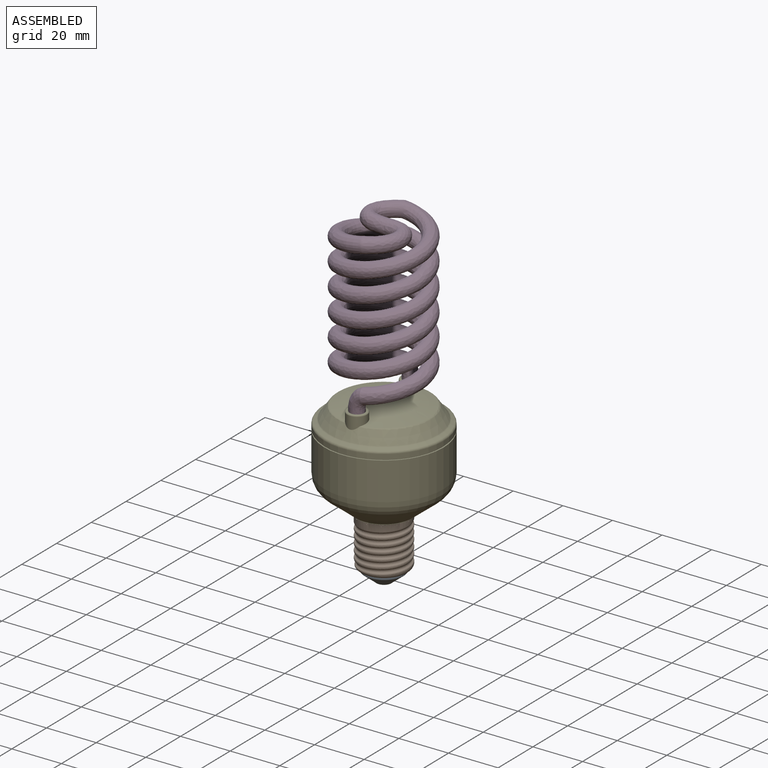
[diagram: assembled view]
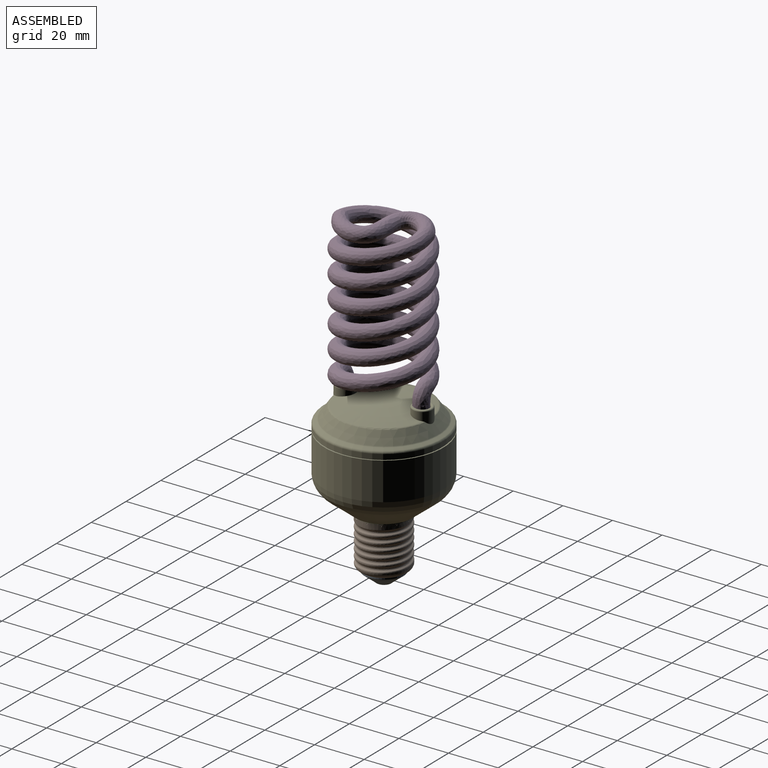
[diagram: assembled view, second angle]
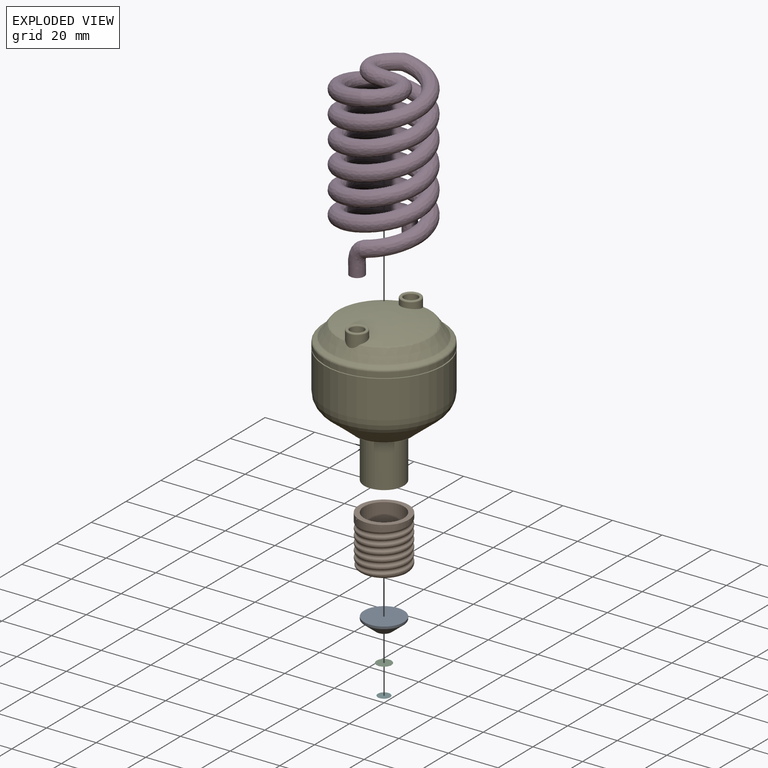
[diagram: exploded view]
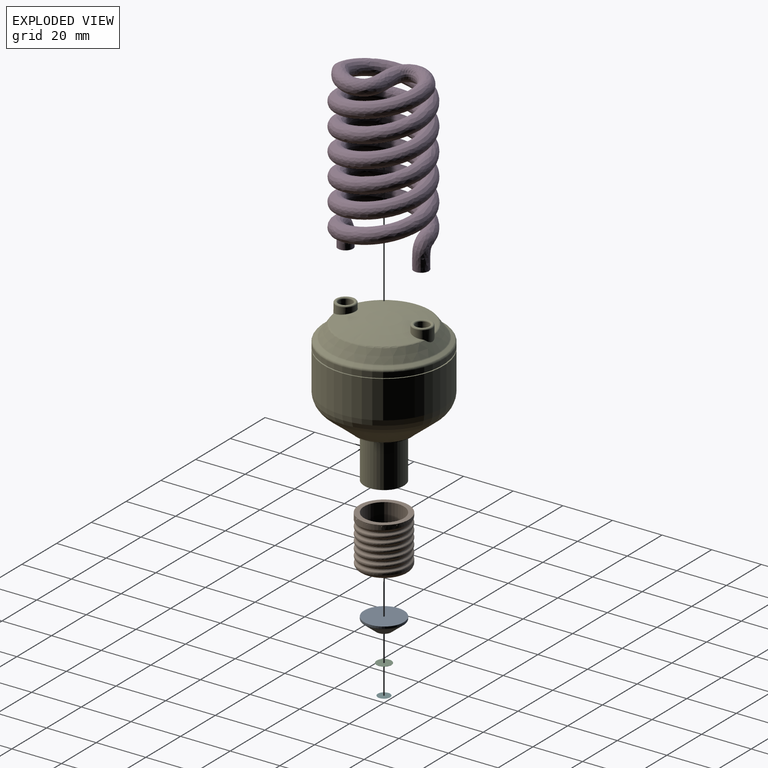
[diagram: exploded view, second angle]
ASSEMBLY  parts=6 mates=5
PART A: 5 faces, bbox 17.3x17.3x5 mm
  f0: plane 16x16mm, normal (0,0,1), area 201.1mm2, adj f1
  f1: cylinder r=8mm len=16mm, axis (0,0,1), area 38.2mm2, adj f0,f4
  f2: cone r=8mm half-angle=51.3deg, axis (0,0,1), area 209.3mm2, adj f3,f4
  f3: plane 6x6mm, normal (0,0,-1), area 28.3mm2, adj f2
  f4: torus R=7.5mm, axis (0,0,-1), area 22.3mm2, adj f1,f2
PART B: 67 faces, bbox 21.6x24.8x20 mm
  f0: torus R=0.06mm, axis (0.5,0.87,0), area 0mm2, adj f2,f3
  f1: bspline ~0.48x0.42mm, area 0.1mm2, adj f2,f44
  f2: cone r=0.1mm half-angle=45deg, axis (-0.5,-0.87,0), area 0.1mm2, adj f0,f1
  f3: plane 0.12x0.1mm, normal (-0.5,-0.87,0), area 0mm2, adj f0
  f4: torus R=0.06mm, axis (0.87,0.5,0), area 0mm2, adj f6,f7
  f5: bspline ~0.48x0.42mm, area 0.1mm2, adj f6,f44
  f6: cone r=0.1mm half-angle=45deg, axis (-0.87,-0.5,0), area 0.1mm2, adj f4,f5
  f7: plane 0.12x0.1mm, normal (-0.87,-0.5,0), area 0mm2, adj f4
  f8: torus R=0.06mm, axis (1,0,0), area 0mm2, adj f10,f11
  f9: bspline ~0.48x0.48mm, area 0.1mm2, adj f10,f44,f58
  f10: cone r=0.1mm half-angle=45deg, axis (-1,0,0), area 0.1mm2, adj f8,f9
  f11: plane 0.12x0.12mm, normal (-1,0,0), area 0mm2, adj f8
  f12: torus R=0.06mm, axis (0.87,-0.5,0), area 0mm2, adj f14,f15
  f13: bspline ~0.48x0.42mm, area 0.1mm2, adj f14,f44
  f14: cone r=0.1mm half-angle=45deg, axis (-0.87,0.5,0), area 0.1mm2, adj f12,f13
  f15: plane 0.12x0.1mm, normal (-0.87,0.5,0), area 0mm2, adj f12
  f16: torus R=0.06mm, axis (0.5,-0.87,0), area 0mm2, adj f18,f19
  f17: bspline ~0.48x0.42mm, area 0.1mm2, adj f18,f44
  f18: cone r=0.1mm half-angle=45deg, axis (-0.5,0.87,0), area 0.1mm2, adj f16,f17
  f19: plane 0.12x0.1mm, normal (-0.5,0.87,0), area 0mm2, adj f16
  f20: torus R=0.06mm, axis (0,-1,0), area 0mm2, adj f22,f23
  f21: bspline ~0.48x0.48mm, area 0.1mm2, adj f22,f44
  f22: cone r=0.1mm half-angle=45deg, axis (0,1,0), area 0.1mm2, adj f20,f21
  f23: plane 0.12x0.12mm, normal (0,1,0), area 0mm2, adj f20
  f24: torus R=0.06mm, axis (-0.5,-0.87,0), area 0mm2, adj f26,f27
  f25: bspline ~0.48x0.42mm, area 0.1mm2, adj f26,f44
  f26: cone r=0.1mm half-angle=45deg, axis (0.5,0.87,0), area 0.1mm2, adj f24,f25
  f27: plane 0.12x0.1mm, normal (0.5,0.87,0), area 0mm2, adj f24
  f28: torus R=0.06mm, axis (-0.87,-0.5,0), area 0mm2, adj f30,f31
  f29: bspline ~0.48x0.42mm, area 0.1mm2, adj f30,f44
  f30: cone r=0.1mm half-angle=45deg, axis (0.87,0.5,0), area 0.1mm2, adj f28,f29
  f31: plane 0.12x0.1mm, normal (0.87,0.5,0), area 0mm2, adj f28
  f32: torus R=0.06mm, axis (-1,0,0), area 0mm2, adj f34,f35
  f33: bspline ~0.48x0.48mm, area 0.1mm2, adj f34,f44
  f34: cone r=0.1mm half-angle=45deg, axis (1,0,0), area 0.1mm2, adj f32,f33
  f35: plane 0.12x0.12mm, normal (1,0,0), area 0mm2, adj f32
  f36: torus R=0.06mm, axis (-0.87,0.5,0), area 0mm2, adj f38,f39
  f37: bspline ~0.48x0.42mm, area 0.1mm2, adj f38,f44
  f38: cone r=0.1mm half-angle=45deg, axis (0.87,-0.5,0), area 0.1mm2, adj f36,f37
  f39: plane 0.12x0.1mm, normal (0.87,-0.5,0), area 0mm2, adj f36
  f40: torus R=0.06mm, axis (-0.5,0.87,0), area 0mm2, adj f42,f43
  f41: bspline ~0.48x0.42mm, area 0.1mm2, adj f42,f44
  f42: cone r=0.1mm half-angle=45deg, axis (0.5,-0.87,0), area 0.1mm2, adj f40,f41
  f43: plane 0.12x0.1mm, normal (0.5,-0.87,0), area 0mm2, adj f40
  f44: cylinder r=10mm len=20mm, axis (0,0,-1), area 122.1mm2, adj f1,f5,f9,f13,f17,f21,f25,f29
  f45: cylinder r=10mm len=20mm, axis (0,0,-1), area 21.4mm2, adj f46,f53,f54,f55,f59
  f46: cylinder r=10mm len=20mm, axis (0,0,-1), area 15.5mm2, adj f45,f47,f53,f54
  f47: cylinder r=10mm len=20mm, axis (0,0,-1), area 15.5mm2, adj f46,f48,f53,f54
  f48: cylinder r=10mm len=20mm, axis (0,0,-1), area 15.5mm2, adj f47,f49,f53,f54
  f49: cylinder r=10mm len=20mm, axis (0,0,-1), area 15.5mm2, adj f48,f50,f53,f54
  f50: cylinder r=10mm len=20mm, axis (0,0,-1), area 15.5mm2, adj f44,f49,f53,f54,f58
  f51: plane 20x20mm, normal (0,0,1), area 113.1mm2, adj f44,f66
  f52: bspline ~24.83x21.57mm, area 587.8mm2, adj f53,f54,f56,f57,f58,f61
  f53: bspline ~20.01x20.01mm, area 247.6mm2, adj f44,f45,f46,f47,f48,f49,f50,f52
  f54: bspline ~20.01x20.01mm, area 228.9mm2, adj f45,f46,f47,f48,f49,f50,f52,f58
  f55: torus R=8mm, axis (0,0,1), area 157.3mm2, adj f45,f60,f61,f66
  f56: cylinder r=0.75mm len=3.69mm, axis (0,1,-0.04), area 4.4mm2, adj f52,f58
  f57: cylinder r=0.75mm len=3.7mm, axis (0,-1,0.04), area 2.6mm2, adj f52,f59,f60
  f58: bspline ~6.31x2.69mm, area 7.2mm2, adj f9,f44,f50,f52,f53,f54,f56
  f59: bspline ~4.43x1.32mm, area 2.1mm2, adj f45,f53,f57,f60
  f60: bspline ~4.27x1.38mm, area 2.9mm2, adj f55,f57,f59,f61
  f61: bspline ~19.71x10.31mm, area 23mm2, adj f52,f54,f55,f60
  f62: cone r=0.1mm half-angle=45deg, axis (0,-1,0), area 0.1mm2, adj f64,f65
  f63: plane 0.12x0.12mm, normal (0,-1,0), area 0mm2, adj f65
  f64: bspline ~0.48x0.48mm, area 0.1mm2, adj f44,f62
  f65: torus R=0.06mm, axis (0,1,0), area 0mm2, adj f62,f63
  f66: cylinder r=8mm len=20mm, axis (0,0,-1), area 1005.3mm2, adj f51,f55
PART C: 3 faces, bbox 6x6x0.1 mm
  f0: plane 6x6mm, normal (0,0,1), area 28.3mm2, adj f1
  f1: cylinder r=3mm len=6mm, axis (0,0,-1), area 0.9mm2, adj f0,f2
  f2: plane 6x6mm, normal (0,0,-1), area 28.3mm2, adj f1
PART D: 16 faces, bbox 39.3x39.2x71.5 mm
  f0: plane 7.11x7.07mm, normal (0,0,-1), area 27.6mm2, adj f2
  f1: bspline ~10.71x6.44mm, area 152.2mm2, adj f2,f14,f15
  f2: bspline ~5.89x5.89mm, area 53.1mm2, adj f0,f1
  f3: bspline ~60.84x36.93mm, area 5595.9mm2, adj f8,f9,f12,f13
  f4: bspline ~35.83x25.5mm, area 949mm2, adj f8,f9,f10,f11
  f5: bspline ~60.81x36.96mm, area 5593.6mm2, adj f10,f11,f14,f15
  f6: plane 8.2x8.17mm, normal (0,0,-1), area 27.3mm2, adj f7
  f7: bspline ~14.17x6.4mm, area 208.9mm2, adj f6,f12,f13
  f8: bspline ~5.59x4.27mm, area 0mm2, adj f3,f4
  f9: bspline ~5.64x4.52mm, area 7.2mm2, adj f3,f4
  f10: bspline ~5.48x4.47mm, area 5mm2, adj f4,f5
  f11: bspline ~5.52x4.69mm, area 6.6mm2, adj f4,f5
  f12: bspline ~5.28x4.71mm, area 0mm2, adj f3,f7
  f13: bspline ~5.29x4.93mm, area 0mm2, adj f3,f7
  f14: bspline ~5.31x4.92mm, area 0.1mm2, adj f1,f5
  f15: bspline ~5.1x4.92mm, area 0.1mm2, adj f1,f5
PART E: 42 faces, bbox 52x52x61 mm
  f0: torus R=17.9mm, axis (0,0,-1), area 38.4mm2, adj f12,f13,f34,f37
  f1: plane 20x20mm, normal (0,0,-1), area 113.1mm2, adj f2,f40
  f2: cone r=10mm half-angle=63.4deg, axis (0,0,1), area 73.8mm2, adj f1,f3
  f3: cylinder r=11mm len=22mm, axis (0,0,1), area 34.6mm2, adj f2,f4
  f4: plane 23x23mm, normal (0,0,-1), area 35.3mm2, adj f3,f5
  f5: cone r=11.5mm half-angle=51.3deg, axis (0,0,1), area 1241.8mm2, adj f4,f14
  f6: cylinder r=24mm len=48mm, axis (0,0,1), area 2285.3mm2, adj f7,f14
  f7: plane 48x48mm, normal (0,0,1), area 74.6mm2, adj f6,f8
  f8: cylinder r=23.5mm len=47mm, axis (0,0,1), area 73.8mm2, adj f7,f9
  f9: plane 48x48mm, normal (0,0,-1), area 74.6mm2, adj f8,f10
  f10: cylinder r=24mm len=48mm, axis (0,0,1), area 283.8mm2, adj f9,f15
  f11: cone r=24mm half-angle=63.4deg, axis (0,0,-1), area 195.8mm2, adj f15,f16
  f12: cone r=22mm half-angle=35deg, axis (0,0,-1), area 686.2mm2, adj f0,f16,f17,f35,f39
  f13: torus R=0.71mm, axis (0,0,1), area 950.7mm2, adj f0,f17,f32,f36
  f14: torus R=16mm, axis (0,0,-1), area 1034.7mm2, adj f5,f6
  f15: torus R=23mm, axis (0,0,-1), area 165.6mm2, adj f10,f11
  f16: torus R=22.67mm, axis (0,0,1), area 68.7mm2, adj f11,f12
  f17: torus R=17.9mm, axis (0,0,-1), area 38.4mm2, adj f12,f13,f33,f38
  f18: cylinder r=2.75mm len=5.5mm, axis (0,0,-1), area 50.5mm2, adj f21,f22,f31
  f19: cylinder r=4mm len=8mm, axis (0,0,-1), area 77.8mm2, adj f29,f36,f37,f38,f39
  f20: plane 7x7mm, normal (0,0,1), area 5.3mm2, adj f29,f31
  f21: torus R=17.9mm, axis (0,0,-1), area 0.2mm2, adj f18,f22
  f22: torus R=0.71mm, axis (0,0,1), area 24mm2, adj f18,f21
  f23: cylinder r=2.75mm len=5.5mm, axis (0,0,-1), area 50.5mm2, adj f26,f27,f30
  f24: cylinder r=4mm len=8mm, axis (0,0,-1), area 77.8mm2, adj f28,f32,f33,f34,f35
  f25: plane 7x7mm, normal (0,0,1), area 5.3mm2, adj f28,f30
  f26: torus R=17.9mm, axis (0,0,-1), area 0.2mm2, adj f23,f27
  f27: torus R=0.71mm, axis (0,0,1), area 24mm2, adj f23,f26
  f28: torus R=3.5mm, axis (0,0,-1), area 18.8mm2, adj f24,f25
  f29: torus R=3.5mm, axis (0,0,-1), area 18.8mm2, adj f19,f20
  f30: torus R=3.25mm, axis (0,0,-1), area 14.5mm2, adj f23,f25
  f31: torus R=3.25mm, axis (0,0,-1), area 14.5mm2, adj f18,f20
  f32: bspline ~8.2x7.12mm, area 2.8mm2, adj f13,f24,f33,f34
  f33: bspline ~0.96x0.95mm, area 0.1mm2, adj f17,f24,f32,f35
  f34: bspline ~1.18x1.1mm, area 0.1mm2, adj f0,f24,f32,f35
  f35: bspline ~6.08x1.64mm, area 0.4mm2, adj f12,f24,f33,f34
  f36: bspline ~8.2x7.12mm, area 2.8mm2, adj f13,f19,f37,f38
  f37: bspline ~0.96x0.95mm, area 0.1mm2, adj f0,f19,f36,f39
  f38: bspline ~1.18x1.1mm, area 0.1mm2, adj f17,f19,f36,f39
  f39: bspline ~6.08x1.64mm, area 0.4mm2, adj f12,f19,f37,f38
  f40: cylinder r=8mm len=18mm, axis (0,0,1), area 904.8mm2, adj f1,f41
  f41: plane 16x16mm, normal (0,0,-1), area 201.1mm2, adj f40
PART F: 2 faces, bbox 5x5x0.4 mm
  f0: plane 5x5mm, normal (0,0,1), area 19.6mm2, adj f1
  f1: sphere r=8.01mm, area 20.1mm2, adj f0
PLACE A at identity
PLACE B at identity
PLACE C at identity
PLACE D t=(0.01,-0.24,-1.47)mm
PLACE E at identity fixed
PLACE F at identity
MATE fastened B.f44 <-> E.f40  axis (0,0,1) through (0,0,20)mm
MATE fastened C.f1 <-> A.f1  axis (0,0,1) through (0,0,-5)mm
MATE fastened F.f0 <-> C.f1  axis (0,0,1) through (0,0,-5.05)mm
MATE fastened D.f0 <-> E.f23  axis (0,0,-1) through (0,-15.5,59.03)mm
MATE fastened A.f1 <-> B.f44  axis (0,0,1) through (0,0,0)mm
